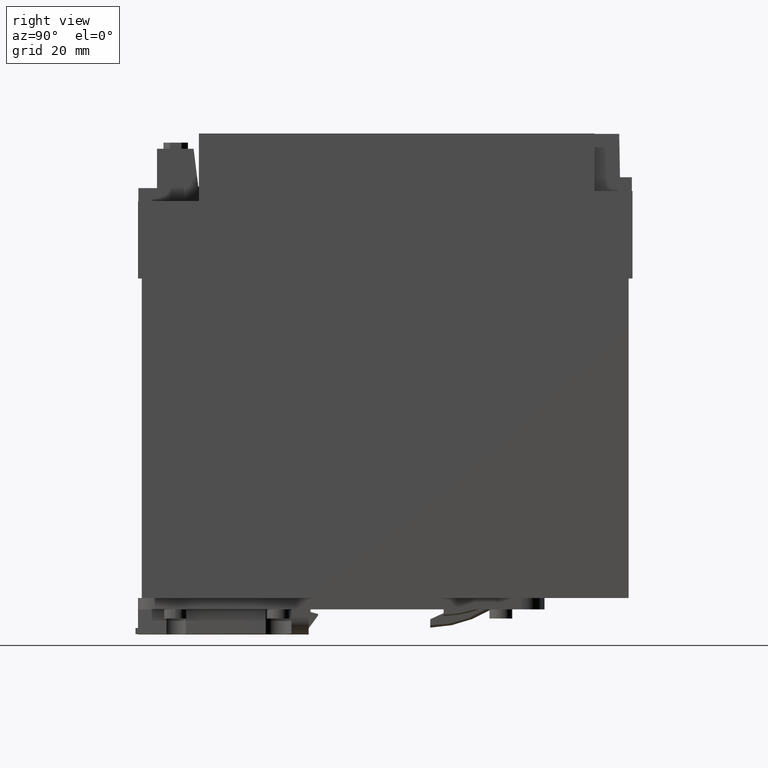
[diagram: clean part render]
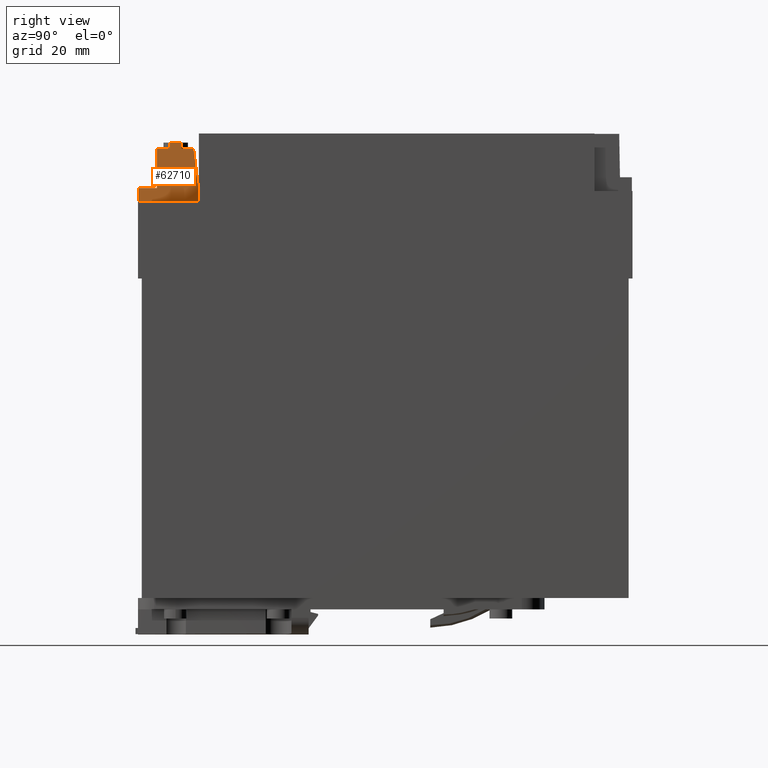
[diagram: same view with one face highlighted and labeled with its STEP entity id]
A machine part, right view. The second image highlights one B-rep face of the part: STEP entity #62710.
In plain terms, the highlighted planar face has unit normal (1, 0, 0).
Its self-contained STEP definition (entity closure, byte-faithful):
#43200=CARTESIAN_POINT('',(12.71,141.7,14.58));
#43210=VERTEX_POINT('',#43200);
#43260=CARTESIAN_POINT('',(12.71,0.,14.58));
#43270=DIRECTION('',(0.,1.,0.));
#43280=VECTOR('',#43270,1.);
#43290=LINE('',#43260,#43280);
#43300=CARTESIAN_POINT('',(12.71,140.1,14.58));
#43310=VERTEX_POINT('',#43300);
#43320=EDGE_CURVE('',#43310,#43210,#43290,.T.);
#50000=CARTESIAN_POINT('',(12.71,126.3,7.));
#50010=VERTEX_POINT('',#50000);
#50040=CARTESIAN_POINT('',(12.71,0.,7.));
#50050=DIRECTION('',(0.,-1.,0.));
#50060=VECTOR('',#50050,1.);
#50070=LINE('',#50040,#50060);
#50080=CARTESIAN_POINT('',(12.71,130.1,7.));
#50090=VERTEX_POINT('',#50080);
#50100=EDGE_CURVE('',#50090,#50010,#50070,.T.);
#61070=CARTESIAN_POINT('',(12.71,130.1,0.));
#61080=DIRECTION('',(0.,0.,1.));
#61090=VECTOR('',#61080,1.);
#61100=LINE('',#61070,#61090);
#61110=CARTESIAN_POINT('',(12.71,130.1,7.14999999999624));
#61120=VERTEX_POINT('',#61110);
#61130=EDGE_CURVE('',#50090,#61120,#61100,.T.);
#61520=CARTESIAN_POINT('',(12.71,140.1,0.));
#61530=DIRECTION('',(0.,0.,1.));
#61540=VECTOR('',#61530,1.);
#61550=LINE('',#61520,#61540);
#61560=CARTESIAN_POINT('',(12.71,140.1,18.));
#61570=VERTEX_POINT('',#61560);
#61580=EDGE_CURVE('',#43310,#61570,#61550,.T.);
#61850=CARTESIAN_POINT('',(12.71,129.75,18.));
#61860=VERTEX_POINT('',#61850);
#61910=CARTESIAN_POINT('',(12.71,0.,18.));
#61920=DIRECTION('',(0.,1.,0.));
#61930=VECTOR('',#61920,1.);
#61940=LINE('',#61910,#61930);
#61950=EDGE_CURVE('',#61860,#61570,#61940,.T.);
#62070=CARTESIAN_POINT('',(12.71,142.086323,23.298823));
#62080=DIRECTION('',(1.,0.,0.));
#62090=DIRECTION('',(0.,-1.,0.));
#62100=AXIS2_PLACEMENT_3D('',#62070,#62080,#62090);
#62110=PLANE('',#62100);
#62120=CARTESIAN_POINT('',(12.71,126.3,0.));
#62130=DIRECTION('',(0.,0.,1.));
#62140=VECTOR('',#62130,1.);
#62150=LINE('',#62120,#62140);
#62160=CARTESIAN_POINT('',(12.71,126.3,22.9));
#62170=VERTEX_POINT('',#62160);
#62180=EDGE_CURVE('',#50010,#62170,#62150,.T.);
#62190=ORIENTED_EDGE('',*,*,#62180,.F.);
#62200=CARTESIAN_POINT('',(12.71,0.,22.9));
#62210=DIRECTION('',(0.,-1.,0.));
#62220=VECTOR('',#62210,1.);
#62230=LINE('',#62200,#62220);
#62240=CARTESIAN_POINT('',(12.71,129.75,22.9));
#62250=VERTEX_POINT('',#62240);
#62260=EDGE_CURVE('',#62250,#62170,#62230,.T.);
#62270=ORIENTED_EDGE('',*,*,#62260,.T.);
#62280=CARTESIAN_POINT('',(12.71,129.75,0.));
#62290=DIRECTION('',(0.,0.,-1.));
#62300=VECTOR('',#62290,1.);
#62310=LINE('',#62280,#62300);
#62320=EDGE_CURVE('',#62250,#61860,#62310,.T.);
#62330=ORIENTED_EDGE('',*,*,#62320,.F.);
#62340=ORIENTED_EDGE('',*,*,#61950,.F.);
#62350=ORIENTED_EDGE('',*,*,#61580,.T.);
#62360=ORIENTED_EDGE('',*,*,#43320,.F.);
#62370=CARTESIAN_POINT('',(12.71,141.7,0.));
#62380=DIRECTION('',(0.,0.,1.));
#62390=VECTOR('',#62380,1.);
#62400=LINE('',#62370,#62390);
#62410=CARTESIAN_POINT('',(12.71,141.7,11.58));
#62420=VERTEX_POINT('',#62410);
#62430=EDGE_CURVE('',#62420,#43210,#62400,.T.);
#62440=ORIENTED_EDGE('',*,*,#62430,.T.);
#62450=CARTESIAN_POINT('',(12.71,0.,11.58));
#62460=DIRECTION('',(0.,-1.,0.));
#62470=VECTOR('',#62460,1.);
#62480=LINE('',#62450,#62470);
#62490=CARTESIAN_POINT('',(12.71,140.1,11.58));
#62500=VERTEX_POINT('',#62490);
#62510=EDGE_CURVE('',#62420,#62500,#62480,.T.);
#62520=ORIENTED_EDGE('',*,*,#62510,.F.);
#62530=CARTESIAN_POINT('',(12.71,140.1,0.));
#62540=DIRECTION('',(0.,0.,1.));
#62550=VECTOR('',#62540,1.);
#62560=LINE('',#62530,#62550);
#62570=CARTESIAN_POINT('',(12.71,140.1,8.37784560902477));
#62580=VERTEX_POINT('',#62570);
#62590=EDGE_CURVE('',#62580,#62500,#62560,.T.);
#62600=ORIENTED_EDGE('',*,*,#62590,.T.);
#62610=CARTESIAN_POINT('',(12.71,0.,-8.82427137346583));
#62620=DIRECTION('',(0.,0.992546151641328,0.121869343405103));
#62630=VECTOR('',#62620,1.);
#62640=LINE('',#62610,#62630);
#62650=EDGE_CURVE('',#61120,#62580,#62640,.T.);
#62660=ORIENTED_EDGE('',*,*,#62650,.T.);
#62670=ORIENTED_EDGE('',*,*,#61130,.T.);
#62680=ORIENTED_EDGE('',*,*,#50100,.F.);
#62690=EDGE_LOOP('',(#62680,#62670,#62660,#62600,#62520,#62440,#62360,
#62350,#62340,#62330,#62270,#62190));
#62700=FACE_OUTER_BOUND('',#62690,.T.);
#62710=ADVANCED_FACE('',(#62700),#62110,.T.);